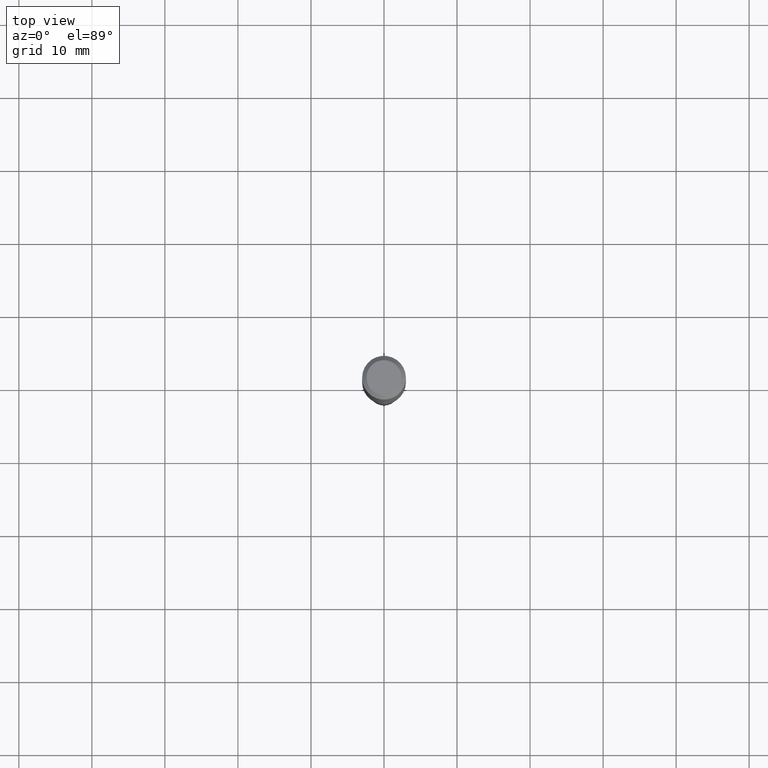
[diagram: clean part render]
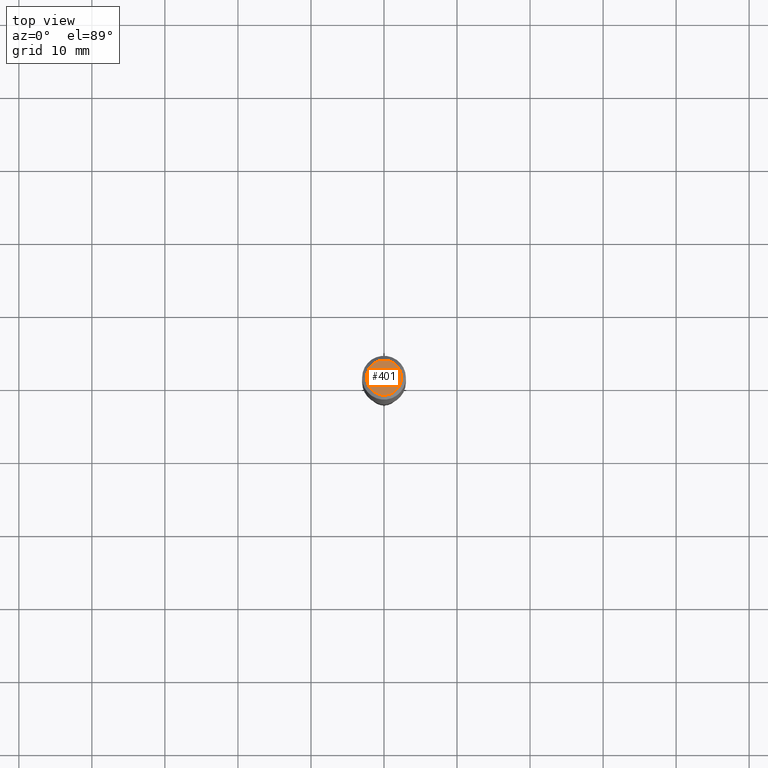
[diagram: same view with one face highlighted and labeled with its STEP entity id]
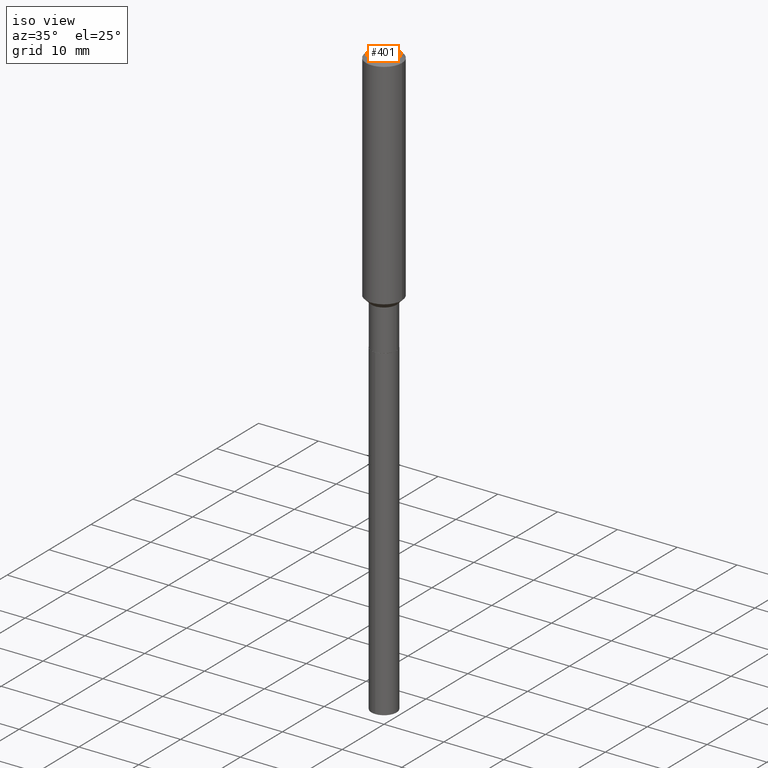
[diagram: same view with one face highlighted and labeled with its STEP entity id]
A machine part, top view. The second image highlights one B-rep face of the part: STEP entity #401.
A second angle (iso view) of the same face is appended — the face is thin or edge-on in the first view.
In plain terms, the highlighted planar face has unit normal (0, -0, -1).
Its self-contained STEP definition (entity closure, byte-faithful):
#1 = CIRCLE ( 'NONE', #403, 0.09447999999999998066 ) ;
#13 = ORIENTED_EDGE ( 'NONE', *, *, #106, .T. ) ;
#50 = VERTEX_POINT ( 'NONE', #295 ) ;
#86 = EDGE_CURVE ( 'NONE', #50, #207, #94, .T. ) ;
#94 = CIRCLE ( 'NONE', #179, 0.09447999999999998066 ) ;
#98 = DIRECTION ( 'NONE',  ( 2.438088387897960049E-29, -3.491481338843145188E-15, -1.000000000000000000 ) ) ;
#105 = ORIENTED_EDGE ( 'NONE', *, *, #86, .T. ) ;
#106 = EDGE_CURVE ( 'NONE', #207, #50, #1, .T. ) ;
#132 = FACE_OUTER_BOUND ( 'NONE', #251, .T. ) ;
#135 = PLANE ( 'NONE',  #230 ) ;
#179 = AXIS2_PLACEMENT_3D ( 'NONE', #380, #419, #232 ) ;
#207 = VERTEX_POINT ( 'NONE', #379 ) ;
#230 = AXIS2_PLACEMENT_3D ( 'NONE', #368, #98, #256 ) ;
#232 = DIRECTION ( 'NONE',  ( 1.000000000000000000, -6.982962677686267499E-15, 4.875432709231658792E-29 ) ) ;
#251 = EDGE_LOOP ( 'NONE', ( #105, #13 ) ) ;
#256 = DIRECTION ( 'NONE',  ( -1.000000000000000000, 6.982962677686265922E-15, -4.876176775795935793E-29 ) ) ;
#295 = CARTESIAN_POINT ( 'NONE',  ( -0.09447999999999998066, 7.009847083995354710E-16, -1.928573779297727792E-17 ) ) ;
#342 = DIRECTION ( 'NONE',  ( -2.445468806185136597E-29, 3.491481338843145583E-15, 1.000000000000000000 ) ) ;
#368 = CARTESIAN_POINT ( 'NONE',  ( 2.358133508849003952E-46, -3.366789680499277518E-32, -9.642868896486260050E-18 ) ) ;
#379 = CARTESIAN_POINT ( 'NONE',  ( 0.09447999999999998066, -7.704367267948738690E-16, -1.928573779296752193E-17 ) ) ;
#380 = CARTESIAN_POINT ( 'NONE',  ( 4.716267017698007905E-46, -6.733579360998555036E-32, -1.928573779297252010E-17 ) ) ;
#401 = ADVANCED_FACE ( 'NONE', ( #132 ), #135, .F. ) ;
#403 = AXIS2_PLACEMENT_3D ( 'NONE', #453, #342, #456 ) ;
#419 = DIRECTION ( 'NONE',  ( -2.445468806185136597E-29, 3.491481338843145583E-15, 1.000000000000000000 ) ) ;
#453 = CARTESIAN_POINT ( 'NONE',  ( 4.716267017698007905E-46, -6.733579360998555036E-32, -1.928573779297252010E-17 ) ) ;
#456 = DIRECTION ( 'NONE',  ( 1.000000000000000000, -6.982962677686267499E-15, 4.875432709231658792E-29 ) ) ;